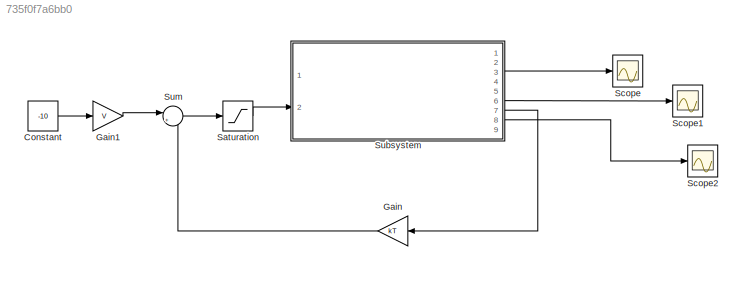
MODEL slx_735f0f7a6bb0
KIND model
CONFIG AbsTol = auto
CONFIG EnableMultiTasking = off
CONFIG FixedStep = 1E-2
CONFIG MaxStep = auto
CONFIG MinStep = auto
CONFIG RelTol = 1e-3
CONFIG SampleTimeConstraint = Unconstrained
CONFIG Solver = FixedStepAuto
CONFIG SolverName = FixedStepAuto
CONFIG StartTime = 0.0
CONFIG StopTime = 200
BLOCK [Constant] Constant
  Value = -10
BLOCK [Gain] Gain
  Gain = kT
  Multiplication = Matrix(K*u)
  OutDataTypeStr = Inherit: Inherit via internal rule
  ParamDataTypeStr = Inherit: Inherit via internal rule
  SaturateOnIntegerOverflow = off
BLOCK [Gain] Gain1
  Gain = V
  OutDataTypeStr = Inherit: Inherit via internal rule
  ParamDataTypeStr = Inherit: Inherit via internal rule
  SaturateOnIntegerOverflow = off
BLOCK [Saturate] Saturation
  InputPortMap = u0
  LowerLimit = -7
  Ports = [1, 1]
  UpperLimit = 3
BLOCK [Scope] Scope
  Floating = off
  NumInputPorts = 1
  Ports = [1]
  ScopeSpecificationString = Simulink.scopes.TimeScopeBlockCfg('CurrentConfiguration', extmgr.ConfigurationSet(extmgr.Configuration('Core','General UI',true),extmgr.Configuration('Core','Source UI',true),extmgr.Configuration('Sources','WiredSimulink',true),extmgr.Configuration('Visuals','Time Domain',true,'SerializedDisplays',{struct('MinYLimReal','-112.00000','MaxYLimReal','8.00000','YLabelReal','','MinYLimMag',' 0.00000','M...<+1385ch>
BLOCK [Scope] Scope1
  Floating = off
  NumInputPorts = 1
  Ports = [1]
  ScopeSpecificationString = Simulink.scopes.TimeScopeBlockCfg('CurrentConfiguration', extmgr.ConfigurationSet(extmgr.Configuration('Core','General UI',true),extmgr.Configuration('Core','Source UI',true),extmgr.Configuration('Sources','WiredSimulink',true,'DataLoggingVariableName','ScopeData1'),extmgr.Configuration('Visuals','Time Domain',true,'SerializedDisplays',{struct('MinYLimReal','17.29364','MaxYLimReal','25.85626','YLa...<+1420ch>
BLOCK [Scope] Scope2
  Floating = off
  NumInputPorts = 1
  Ports = [1]
  ScopeSpecificationString = Simulink.scopes.TimeScopeBlockCfg('CurrentConfiguration', extmgr.ConfigurationSet(extmgr.Configuration('Core','General UI',true),extmgr.Configuration('Core','Source UI',true),extmgr.Configuration('Sources','WiredSimulink',true,'DataLoggingVariableName','ScopeData2'),extmgr.Configuration('Visuals','Time Domain',true,'SerializedDisplays',{struct('MinYLimReal','-113.7057','MaxYLimReal','23.3513','YLa...<+1376ch>
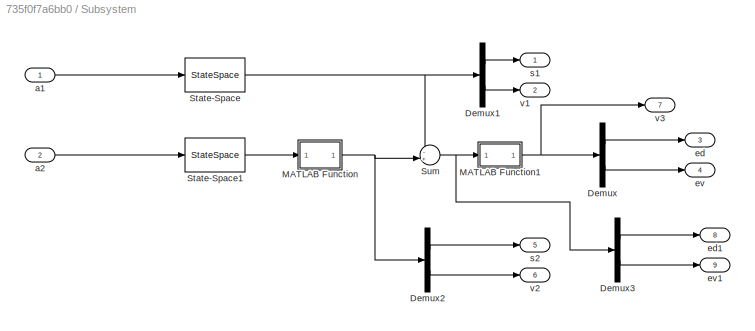
BLOCK [SubSystem] Subsystem
  Ports = [2, 9]
  RequestExecContextInheritance = off
BLOCK [Demux] Subsystem/Demux
  DisplayOption = bar
  Outputs = 2
  Ports = [1, 2]
BLOCK [Demux] Subsystem/Demux1
  DisplayOption = bar
  Outputs = 2
  Ports = [1, 2]
BLOCK [Demux] Subsystem/Demux2
  DisplayOption = bar
  Outputs = 2
  Ports = [1, 2]
BLOCK [Demux] Subsystem/Demux3
  DisplayOption = bar
  Outputs = 2
  Ports = [1, 2]
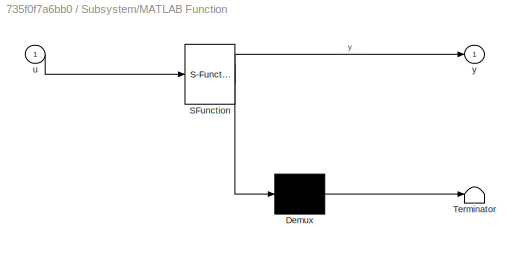
BLOCK [SubSystem] Subsystem/MATLAB Function
  ErrorFcn = Stateflow.Translate.translate
  PermitHierarchicalResolution = ExplicitOnly
  Ports = [1, 1]
  RequestExecContextInheritance = off
  SFBlockType = MATLAB Function
  TreatAsAtomicUnit = on
BLOCK [Demux] Subsystem/MATLAB Function/ Demux 
  Outputs = 1
  Ports = [1, 1]
BLOCK [S-Function] Subsystem/MATLAB Function/ SFunction 
  EnableBusSupport = on
  FunctionName = sf_sfun
  PortCounts = [1 2]
  Ports = [1, 2]
  SFcnIsStateOwnerBlock = off
  SFunctionDeploymentMode = off
  Tag = Stateflow S-Function asdrd_ver2 4
BLOCK [Terminator] Subsystem/MATLAB Function/ Terminator 
BLOCK [Inport] Subsystem/MATLAB Function/u
  IconDisplay = Port number
BLOCK [Outport] Subsystem/MATLAB Function/y
  IconDisplay = Port number
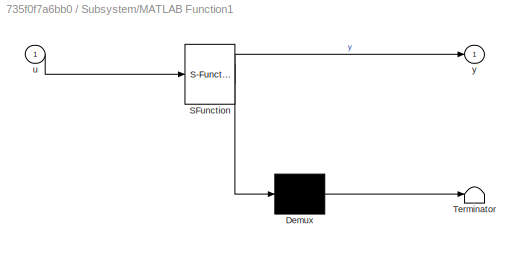
BLOCK [SubSystem] Subsystem/MATLAB Function1
  ErrorFcn = Stateflow.Translate.translate
  PermitHierarchicalResolution = ExplicitOnly
  Ports = [1, 1]
  RequestExecContextInheritance = off
  SFBlockType = MATLAB Function
  TreatAsAtomicUnit = on
BLOCK [Demux] Subsystem/MATLAB Function1/ Demux 
  Outputs = 1
  Ports = [1, 1]
BLOCK [S-Function] Subsystem/MATLAB Function1/ SFunction 
  EnableBusSupport = on
  FunctionName = sf_sfun
  PortCounts = [1 2]
  Ports = [1, 2]
  SFcnIsStateOwnerBlock = off
  SFunctionDeploymentMode = off
  Tag = Stateflow S-Function asdrd_ver2 2
BLOCK [Terminator] Subsystem/MATLAB Function1/ Terminator 
BLOCK [Inport] Subsystem/MATLAB Function1/u
  IconDisplay = Port number
BLOCK [Outport] Subsystem/MATLAB Function1/y
  IconDisplay = Port number
BLOCK [StateSpace] Subsystem/State-Space
  A = A
  B = b
  C = eye(2)
  D = zeros(2,1)
  InitialCondition = [0;20]
  Ports = [1, 1]
BLOCK [StateSpace] Subsystem/State-Space1
  A = A
  B = b
  C = eye(2)
  D = zeros(2,1)
  InitialCondition = [-100;27]
  Ports = [1, 1]
BLOCK [Sum] Subsystem/Sum
  IconShape = round
  InputSameDT = off
  Inputs = -+|
  OutDataTypeStr = Inherit: Inherit via internal rule
  Ports = [2, 1]
  SaturateOnIntegerOverflow = off
BLOCK [Inport] Subsystem/a1
  IconDisplay = Port number
BLOCK [Inport] Subsystem/a2
  IconDisplay = Port number
  Port = 2
BLOCK [Outport] Subsystem/ed
  IconDisplay = Port number
  Port = 3
BLOCK [Outport] Subsystem/ed1
  IconDisplay = Port number
  Port = 8
BLOCK [Outport] Subsystem/ev
  IconDisplay = Port number
  Port = 4
BLOCK [Outport] Subsystem/ev1
  IconDisplay = Port number
  Port = 9
BLOCK [Outport] Subsystem/s1
  IconDisplay = Port number
BLOCK [Outport] Subsystem/s2
  IconDisplay = Port number
  Port = 5
BLOCK [Outport] Subsystem/v1
  IconDisplay = Port number
  Port = 2
BLOCK [Outport] Subsystem/v2
  IconDisplay = Port number
  Port = 6
BLOCK [Outport] Subsystem/v3
  IconDisplay = Port number
  Port = 7
BLOCK [Sum] Sum
  IconShape = round
  InputSameDT = off
  Inputs = |+-
  OutDataTypeStr = Inherit: Inherit via internal rule
  Ports = [2, 1]
  SaturateOnIntegerOverflow = off
LINE Constant:1 -> Gain1:1
LINE Gain1:1 -> Sum:1
LINE Gain:1 -> Sum:2
LINE Saturation:1 -> Subsystem:2
LINE Subsystem/Demux1:1 -> Subsystem/s1:1
LINE Subsystem/Demux1:2 -> Subsystem/v1:1
LINE Subsystem/Demux2:1 -> Subsystem/s2:1
LINE Subsystem/Demux2:2 -> Subsystem/v2:1
LINE Subsystem/Demux3:1 -> Subsystem/ed1:1
LINE Subsystem/Demux3:2 -> Subsystem/ev1:1
LINE Subsystem/Demux:1 -> Subsystem/ed:1
LINE Subsystem/Demux:2 -> Subsystem/ev:1
NET Subsystem/MATLAB Function1:1 -> Subsystem/Demux:1, Subsystem/v3:1
NET Subsystem/MATLAB Function:1 -> Subsystem/Demux2:1, Subsystem/Sum:2
LINE Subsystem/State-Space1:1 -> Subsystem/MATLAB Function:1
NET Subsystem/State-Space:1 -> Subsystem/Demux1:1, Subsystem/Sum:1
NET Subsystem/Sum:1 -> Subsystem/Demux3:1, Subsystem/MATLAB Function1:1
LINE Subsystem/a1:1 -> Subsystem/State-Space:1
LINE Subsystem/a2:1 -> Subsystem/State-Space1:1
LINE Subsystem:3 -> Scope:1
LINE Subsystem:6 -> Scope1:1
LINE Subsystem:7 -> Gain:1
LINE Subsystem:8 -> Scope2:1
LINE Sum:1 -> Saturation:1
note: NET lines group one-source signal fan-out (src -> all destinations, sorted); 1:1 wires keep LINE
CHART Subsystem/MATLAB Function1 states=1 transitions=1
  STATE_LABEL 'eML_blk_kernel()'
  STATE_LABEL 'SCRIPT:\nfunction y = fcn(u)\ny = [u(1);u(2)];\n% if u(1) >= -4\n%     y(1) = -4;\n% else\n%     y(1) = u(1);\n% end\n'
CHART Subsystem/MATLAB Function states=1 transitions=1
  STATE_LABEL 'eML_blk_kernel()'
  STATE_LABEL 'SCRIPT:\nfunction y = fcn(u)\ny = [0;0]\nif u(2) >= 25\n    y(2) = 25;\n    y(1) = u(1);\nelseif u(2) <= 15\n    y(2) = 15;\n    y(1) = u(1);\nelse\n    y(2) = u(2);\n    y(1) = u(1);\nend\n\n\n'
